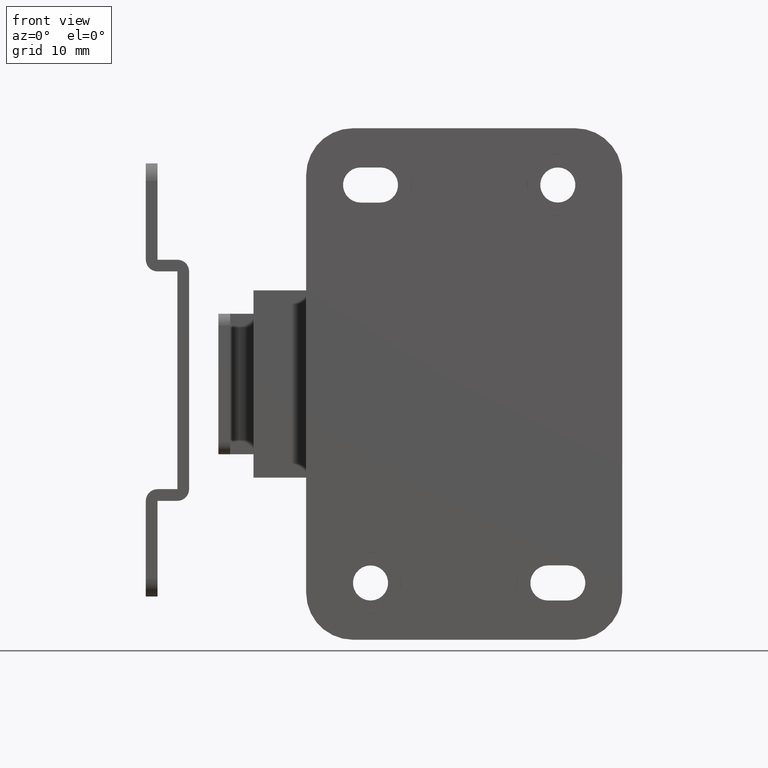
[diagram: clean part render]
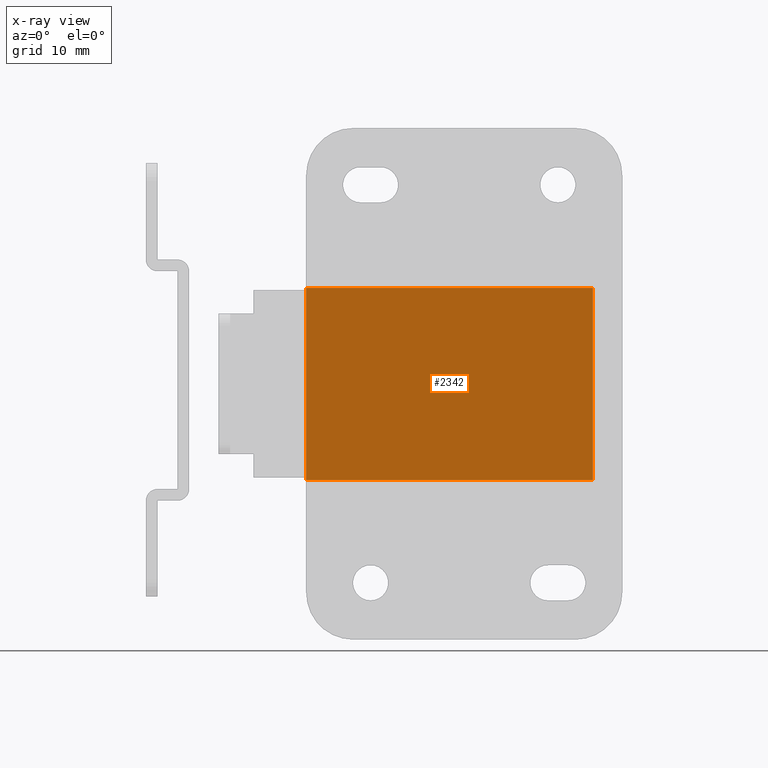
[diagram: x-ray — body ghosted, one internal face saturated and labeled with its STEP entity id]
A machine part, front view, then the same camera in x-ray: the body is ghosted and one INTERNAL B-rep face — a face not visible from any outside direction — is saturated and labeled: STEP entity #2342.
In plain terms, the highlighted planar face has unit normal (0, -1, 0).
Its self-contained STEP definition (entity closure, byte-faithful):
#114=PLANE('',#2558);
#208=LINE('',#3521,#435);
#268=LINE('',#3730,#495);
#271=LINE('',#3737,#498);
#273=LINE('',#3740,#500);
#435=VECTOR('',#2815,16.4);
#495=VECTOR('',#3045,24.5);
#498=VECTOR('',#3052,24.5);
#500=VECTOR('',#3056,16.4);
#750=FACE_OUTER_BOUND('',#907,.T.);
#907=EDGE_LOOP('',(#1931,#1932,#1933,#1934));
#1118=VERTEX_POINT('',#3518);
#1119=VERTEX_POINT('',#3520);
#1183=VERTEX_POINT('',#3728);
#1185=VERTEX_POINT('',#3736);
#1359=EDGE_CURVE('',#1118,#1119,#208,.T.);
#1456=EDGE_CURVE('',#1118,#1183,#268,.T.);
#1459=EDGE_CURVE('',#1119,#1185,#271,.T.);
#1461=EDGE_CURVE('',#1183,#1185,#273,.T.);
#1931=ORIENTED_EDGE('',*,*,#1359,.F.);
#1932=ORIENTED_EDGE('',*,*,#1456,.T.);
#1933=ORIENTED_EDGE('',*,*,#1461,.T.);
#1934=ORIENTED_EDGE('',*,*,#1459,.F.);
#2342=ADVANCED_FACE('',(#750),#114,.F.);
#2558=AXIS2_PLACEMENT_3D('',#3739,#3054,#3055);
#2815=DIRECTION('',(-1.,-1.35393051783556E-16,0.));
#3045=DIRECTION('',(0.,0.,-1.));
#3052=DIRECTION('',(0.,0.,-1.));
#3054=DIRECTION('center_axis',(1.35393051783556E-16,-1.,0.));
#3055=DIRECTION('ref_axis',(-1.,0.,0.));
#3056=DIRECTION('',(-1.,-1.35393051783556E-16,0.));
#3518=CARTESIAN_POINT('',(8.200002,8.4,0.));
#3520=CARTESIAN_POINT('',(-8.199998,8.4,0.));
#3521=CARTESIAN_POINT('',(-15.6144484053194,8.4,0.));
#3728=CARTESIAN_POINT('',(8.200002,8.4,-24.5));
#3730=CARTESIAN_POINT('',(8.200002,8.4,0.));
#3736=CARTESIAN_POINT('',(-8.199998,8.4,-24.5));
#3737=CARTESIAN_POINT('',(-8.199998,8.4,0.));
#3739=CARTESIAN_POINT('Origin',(8.200002,8.4,0.));
#3740=CARTESIAN_POINT('',(-8.199998,8.4,-24.5));